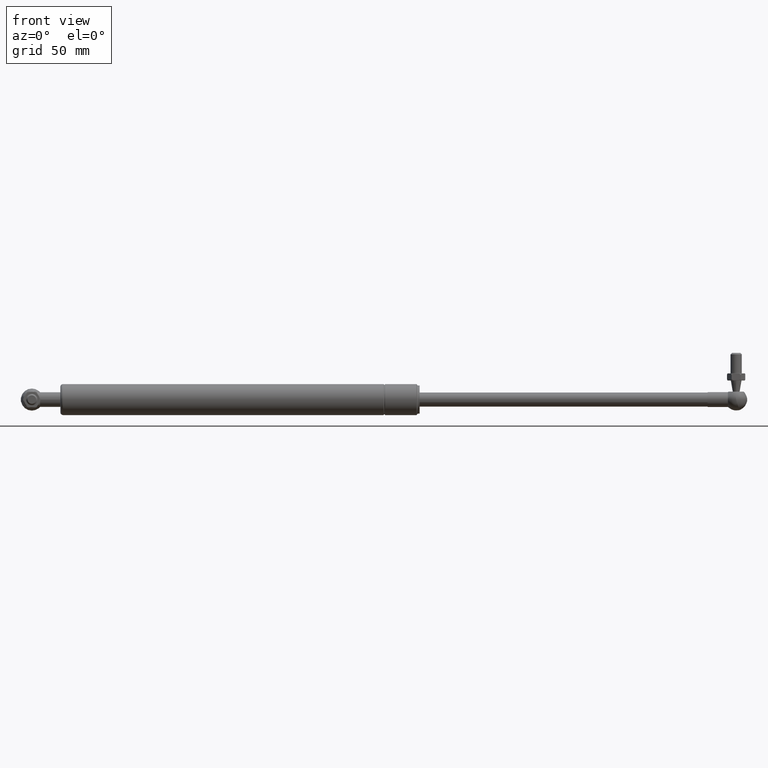
[diagram: clean part render]
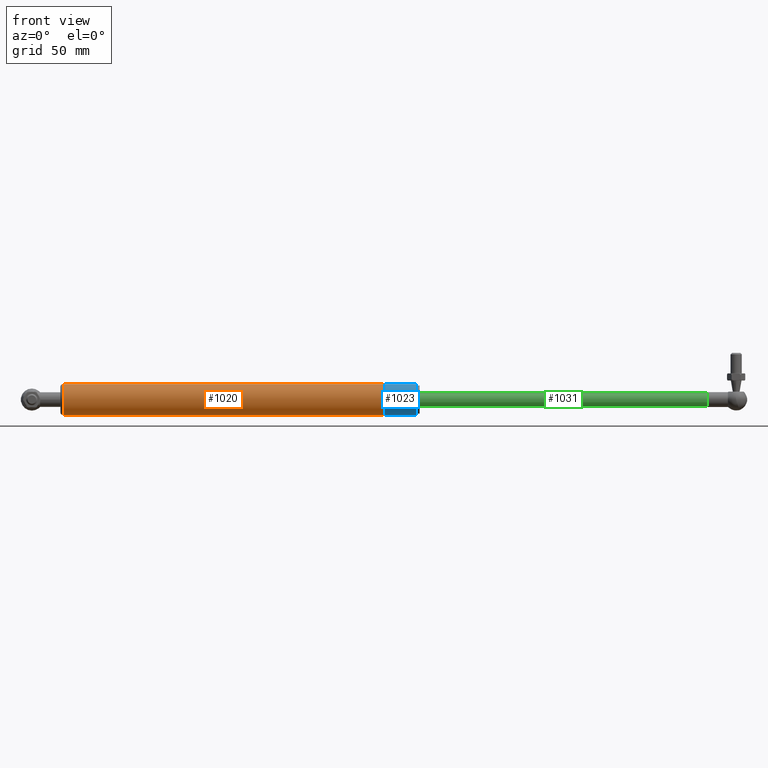
[diagram: same view with three faces highlighted in distinct colors, each labeled with its STEP entity id]
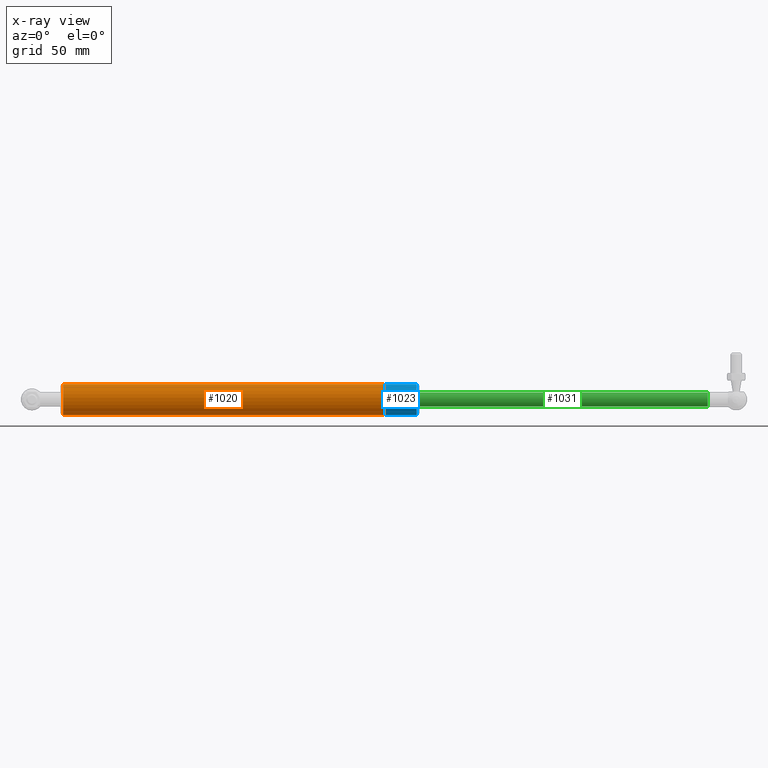
[diagram: x-ray of the same camera — body ghosted, the three highlighted faces saturated]
A machine part, front view with three faces highlighted in distinct colors.
The next image is the same camera in x-ray (body ghosted, the three faces saturated) — at least one of them is partly hidden behind the body in this view.
Their STEP definitions:

[orange] entity #1020 — the highlighted cylindrical surface (bore or boss wall) has radius 11 mm, axis along (1, 0, 0).
#213=CYLINDRICAL_SURFACE('',#1109,11.);
#257=FACE_BOUND('',#374,.T.);
#296=FACE_OUTER_BOUND('',#373,.T.);
#373=EDGE_LOOP('',(#763));
#374=EDGE_LOOP('',(#764));
#469=CIRCLE('',#1098,11.);
#475=CIRCLE('',#1107,11.);
#521=VERTEX_POINT('',#1476);
#527=VERTEX_POINT('',#1491);
#621=EDGE_CURVE('',#521,#521,#469,.T.);
#627=EDGE_CURVE('',#527,#527,#475,.T.);
#763=ORIENTED_EDGE('',*,*,#621,.F.);
#764=ORIENTED_EDGE('',*,*,#627,.F.);
#1020=ADVANCED_FACE('',(#296,#257),#213,.T.);
#1098=AXIS2_PLACEMENT_3D('',#1477,#1221,#1222);
#1107=AXIS2_PLACEMENT_3D('',#1492,#1239,#1240);
#1109=AXIS2_PLACEMENT_3D('',#1494,#1243,#1244);
#1221=DIRECTION('center_axis',(-1.,0.,0.));
#1222=DIRECTION('ref_axis',(0.,0.,1.));
#1239=DIRECTION('center_axis',(1.,0.,0.));
#1240=DIRECTION('ref_axis',(0.,1.22464679914735E-16,-1.));
#1243=DIRECTION('center_axis',(-1.,0.,0.));
#1244=DIRECTION('ref_axis',(0.,0.,1.));
#1476=CARTESIAN_POINT('',(25.5,0.,11.));
#1477=CARTESIAN_POINT('Origin',(25.5,0.,0.));
#1491=CARTESIAN_POINT('',(252.998039208148,-2.69422295812418E-15,11.));
#1492=CARTESIAN_POINT('Origin',(252.998039208148,0.,0.));
#1494=CARTESIAN_POINT('Origin',(140.249019604074,0.,0.));

[blue] entity #1023 — the highlighted cylindrical surface (bore or boss wall) has radius 11 mm, axis along (1, 0, 0).
#215=CYLINDRICAL_SURFACE('',#1114,11.);
#259=FACE_BOUND('',#379,.T.);
#299=FACE_OUTER_BOUND('',#378,.T.);
#378=EDGE_LOOP('',(#768));
#379=EDGE_LOOP('',(#769));
#470=CIRCLE('',#1099,11.);
#471=CIRCLE('',#1101,11.);
#522=VERTEX_POINT('',#1478);
#523=VERTEX_POINT('',#1481);
#622=EDGE_CURVE('',#522,#522,#470,.T.);
#623=EDGE_CURVE('',#523,#523,#471,.T.);
#768=ORIENTED_EDGE('',*,*,#623,.F.);
#769=ORIENTED_EDGE('',*,*,#622,.T.);
#1023=ADVANCED_FACE('',(#299,#259),#215,.T.);
#1099=AXIS2_PLACEMENT_3D('',#1479,#1223,#1224);
#1101=AXIS2_PLACEMENT_3D('',#1482,#1227,#1228);
#1114=AXIS2_PLACEMENT_3D('',#1501,#1253,#1254);
#1223=DIRECTION('center_axis',(-1.,0.,0.));
#1224=DIRECTION('ref_axis',(0.,0.,1.));
#1227=DIRECTION('center_axis',(-1.,0.,0.));
#1228=DIRECTION('ref_axis',(0.,0.,1.));
#1253=DIRECTION('center_axis',(-1.,0.,0.));
#1254=DIRECTION('ref_axis',(0.,0.,1.));
#1478=CARTESIAN_POINT('',(24.5,0.,11.));
#1479=CARTESIAN_POINT('Origin',(24.5,0.,0.));
#1481=CARTESIAN_POINT('',(2.,0.,11.));
#1482=CARTESIAN_POINT('Origin',(2.,0.,0.));
#1501=CARTESIAN_POINT('Origin',(13.25,0.,0.));

[green] entity #1031 — the highlighted cylindrical surface (bore or boss wall) has radius 5 mm, axis along (1, 0, 0).
#218=CYLINDRICAL_SURFACE('',#1129,5.00000000000002);
#265=FACE_BOUND('',#393,.T.);
#307=FACE_OUTER_BOUND('',#392,.T.);
#392=EDGE_LOOP('',(#782));
#393=EDGE_LOOP('',(#783));
#482=CIRCLE('',#1125,5.);
#484=CIRCLE('',#1130,5.00000000000003);
#534=VERTEX_POINT('',#1516);
#536=VERTEX_POINT('',#1523);
#634=EDGE_CURVE('',#534,#534,#482,.T.);
#636=EDGE_CURVE('',#536,#536,#484,.T.);
#782=ORIENTED_EDGE('',*,*,#636,.F.);
#783=ORIENTED_EDGE('',*,*,#634,.T.);
#1031=ADVANCED_FACE('',(#307,#265),#218,.T.);
#1125=AXIS2_PLACEMENT_3D('',#1517,#1275,#1276);
#1129=AXIS2_PLACEMENT_3D('',#1522,#1283,#1284);
#1130=AXIS2_PLACEMENT_3D('',#1524,#1285,#1286);
#1275=DIRECTION('center_axis',(-1.,0.,0.));
#1276=DIRECTION('ref_axis',(0.,0.,1.));
#1283=DIRECTION('center_axis',(-1.,0.,0.));
#1284=DIRECTION('ref_axis',(0.,0.,1.));
#1285=DIRECTION('center_axis',(-1.,0.,0.));
#1286=DIRECTION('ref_axis',(0.,0.,1.));
#1516=CARTESIAN_POINT('',(214.5,0.,5.));
#1517=CARTESIAN_POINT('Origin',(214.5,0.,0.));
#1522=CARTESIAN_POINT('Origin',(107.25,0.,0.));
#1523=CARTESIAN_POINT('',(7.1959436245814E-32,0.,5.00000000000003));
#1524=CARTESIAN_POINT('Origin',(0.,0.,0.));